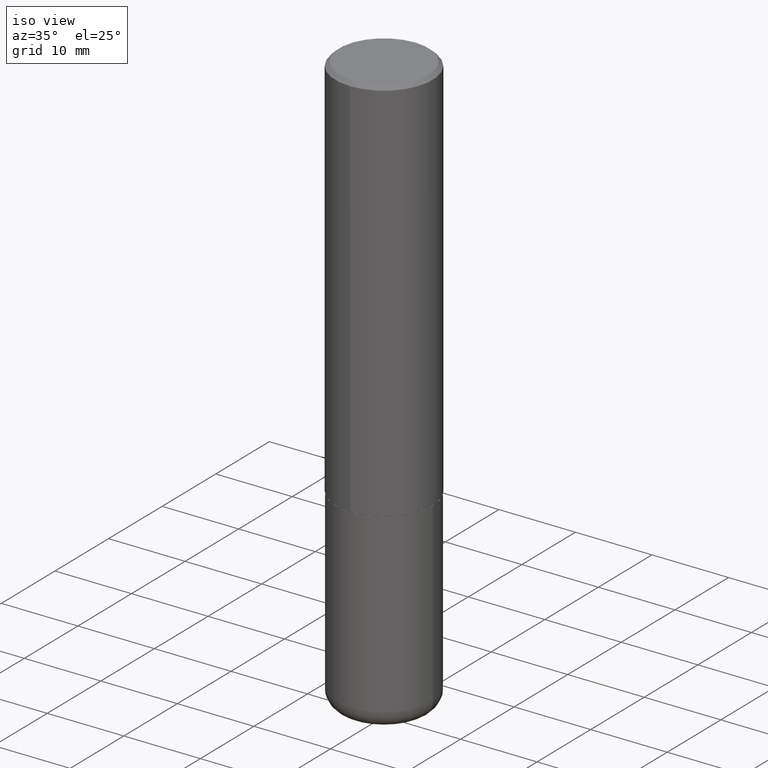
[diagram: clean part render]
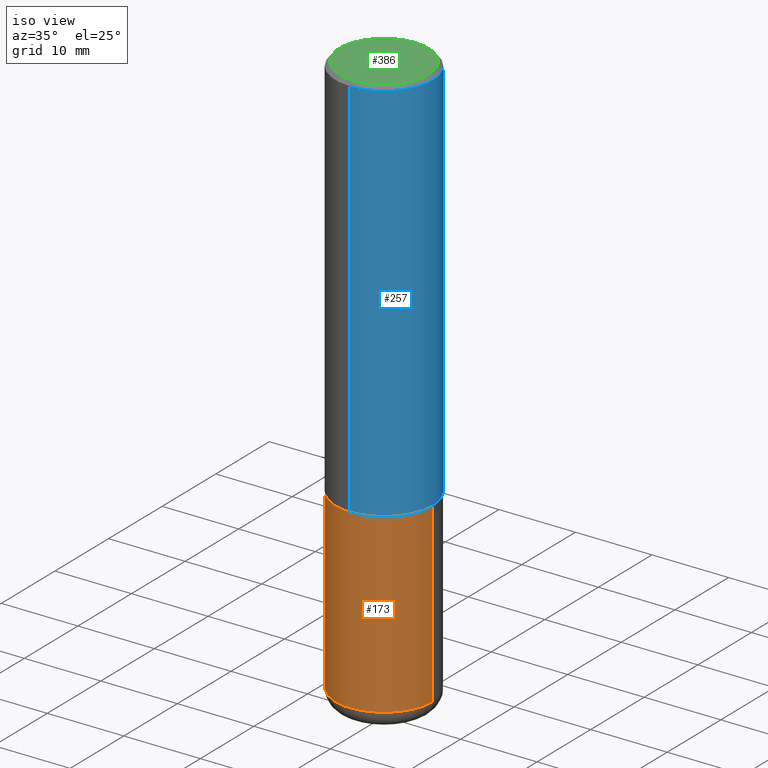
[diagram: same view with three faces highlighted in distinct colors, each labeled with its STEP entity id]
A machine part, iso view with three faces highlighted in distinct colors.
Their STEP definitions:

[orange] entity #173 — the highlighted cylindrical surface (partial cylindrical patch) has radius 6.35 mm, axis along (-0, 0, 1).
#1 = AXIS2_PLACEMENT_3D ( 'NONE', #129, #260, #95 ) ;
#2 = CARTESIAN_POINT ( 'NONE',  ( 0.000000000000000000, 0.000000000000000000, 0.000000000000000000 ) ) ;
#5 = VERTEX_POINT ( 'NONE', #296 ) ;
#36 = LINE ( 'NONE', #302, #264 ) ;
#43 = VECTOR ( 'NONE', #328, 39.37007874015748143 ) ;
#58 = VERTEX_POINT ( 'NONE', #156 ) ;
#61 = ORIENTED_EDGE ( 'NONE', *, *, #211, .T. ) ;
#73 = ORIENTED_EDGE ( 'NONE', *, *, #243, .T. ) ;
#95 = DIRECTION ( 'NONE',  ( 1.000000000000000000, -6.982962677686266711E-15, 0.000000000000000000 ) ) ;
#97 = EDGE_CURVE ( 'NONE', #58, #311, #136, .T. ) ;
#108 = CIRCLE ( 'NONE', #348, 0.2500000000000000555 ) ;
#115 = ORIENTED_EDGE ( 'NONE', *, *, #359, .F. ) ;
#129 = CARTESIAN_POINT ( 'NONE',  ( 4.890937612370273754E-29, -6.982962677686291954E-15, -2.000000000000000444 ) ) ;
#136 = CIRCLE ( 'NONE', #1, 0.2500000000000000000 ) ;
#154 = DIRECTION ( 'NONE',  ( 1.000000000000000000, -6.982962677686266711E-15, 4.876176775795935793E-29 ) ) ;
#156 = CARTESIAN_POINT ( 'NONE',  ( -0.2500000000000000000, -6.795229847459672846E-15, -2.000000000000000444 ) ) ;
#168 = CARTESIAN_POINT ( 'NONE',  ( -0.2500000000000000000, -8.383853856633304202E-15, -2.910000000000000586 ) ) ;
#173 = ADVANCED_FACE ( 'NONE', ( #379 ), #295, .T. ) ;
#185 = DIRECTION ( 'NONE',  ( -2.445468806185136597E-29, 3.491481338843145583E-15, 1.000000000000000000 ) ) ;
#191 = LINE ( 'NONE', #346, #43 ) ;
#211 = EDGE_CURVE ( 'NONE', #306, #5, #108, .T. ) ;
#213 = AXIS2_PLACEMENT_3D ( 'NONE', #2, #355, #154 ) ;
#243 = EDGE_CURVE ( 'NONE', #5, #311, #191, .T. ) ;
#249 = ORIENTED_EDGE ( 'NONE', *, *, #97, .F. ) ;
#251 = EDGE_LOOP ( 'NONE', ( #115, #61, #73, #249 ) ) ;
#260 = DIRECTION ( 'NONE',  ( -2.445468806185136597E-29, 3.491481338843145583E-15, 1.000000000000000000 ) ) ;
#264 = VECTOR ( 'NONE', #270, 39.37007874015748143 ) ;
#270 = DIRECTION ( 'NONE',  ( -2.445468806185136877E-29, 3.491481338843145188E-15, 1.000000000000000000 ) ) ;
#295 = CYLINDRICAL_SURFACE ( 'NONE', #213, 0.2500000000000000000 ) ;
#296 = CARTESIAN_POINT ( 'NONE',  ( 0.2500000000000000000, -1.190595136545512292E-14, -2.910000000000000586 ) ) ;
#302 = CARTESIAN_POINT ( 'NONE',  ( -0.2500000000000000000, 1.776356839400250465E-15, -1.229733772563726445E-29 ) ) ;
#306 = VERTEX_POINT ( 'NONE', #168 ) ;
#311 = VERTEX_POINT ( 'NONE', #330 ) ;
#321 = DIRECTION ( 'NONE',  ( 1.000000000000000000, -6.982962677686269077E-15, 0.000000000000000000 ) ) ;
#328 = DIRECTION ( 'NONE',  ( -2.445468806185136877E-29, 3.491481338843145188E-15, 1.000000000000000000 ) ) ;
#330 = CARTESIAN_POINT ( 'NONE',  ( 0.2500000000000000000, -8.728703347107858632E-15, -2.000000000000000444 ) ) ;
#346 = CARTESIAN_POINT ( 'NONE',  ( 0.2500000000000000000, -1.745740669421566678E-15, 1.219044193948983948E-29 ) ) ;
#348 = AXIS2_PLACEMENT_3D ( 'NONE', #417, #185, #321 ) ;
#355 = DIRECTION ( 'NONE',  ( -2.445468806185136597E-29, 3.491481338843145583E-15, 1.000000000000000000 ) ) ;
#359 = EDGE_CURVE ( 'NONE', #306, #58, #36, .T. ) ;
#379 = FACE_OUTER_BOUND ( 'NONE', #251, .T. ) ;
#417 = CARTESIAN_POINT ( 'NONE',  ( 7.116314225998749245E-29, -1.016021069603355467E-14, -2.910000000000000586 ) ) ;

[blue] entity #257 — the highlighted cylindrical surface (partial cylindrical patch) has radius 6.35 mm, axis along (-0, 0, 1).
#13 = DIRECTION ( 'NONE',  ( -2.444412496635560889E-29, 3.492994034239543658E-15, 1.000000000000000000 ) ) ;
#24 = FACE_OUTER_BOUND ( 'NONE', #165, .T. ) ;
#27 = CARTESIAN_POINT ( 'NONE',  ( 0.000000000000000000, 0.000000000000000000, 0.000000000000000000 ) ) ;
#29 = VECTOR ( 'NONE', #163, 39.37007874015748143 ) ;
#51 = EDGE_CURVE ( 'NONE', #352, #192, #198, .T. ) ;
#53 = CIRCLE ( 'NONE', #293, 0.2500000000000002776 ) ;
#62 = CIRCLE ( 'NONE', #172, 0.2500000000000000000 ) ;
#70 = DIRECTION ( 'NONE',  ( -6.982962677686265922E-15, -1.000000000000000000, 3.500180241882337261E-15 ) ) ;
#90 = EDGE_CURVE ( 'NONE', #352, #362, #53, .T. ) ;
#92 = DIRECTION ( 'NONE',  ( -6.982962677686266711E-15, -1.000000000000000000, 3.492994034239544053E-15 ) ) ;
#98 = CARTESIAN_POINT ( 'NONE',  ( -1.745740669421519543E-15, -0.2500000000000072164, -1.998999999999999444 ) ) ;
#117 = EDGE_CURVE ( 'NONE', #362, #409, #298, .T. ) ;
#146 = CYLINDRICAL_SURFACE ( 'NONE', #159, 0.2500000000000001110 ) ;
#159 = AXIS2_PLACEMENT_3D ( 'NONE', #27, #384, #92 ) ;
#163 = DIRECTION ( 'NONE',  ( -2.444412496635561170E-29, 3.492994034239543658E-15, 1.000000000000000000 ) ) ;
#165 = EDGE_LOOP ( 'NONE', ( #290, #255, #214, #372 ) ) ;
#172 = AXIS2_PLACEMENT_3D ( 'NONE', #233, #13, #70 ) ;
#192 = VERTEX_POINT ( 'NONE', #357 ) ;
#198 = LINE ( 'NONE', #305, #326 ) ;
#199 = CARTESIAN_POINT ( 'NONE',  ( 1.776356839400251254E-15, 0.2500000000000001110, -8.732485085598864076E-16 ) ) ;
#214 = ORIENTED_EDGE ( 'NONE', *, *, #316, .F. ) ;
#229 = DIRECTION ( 'NONE',  ( -2.444412496635561170E-29, 3.492994034239543658E-15, 1.000000000000000000 ) ) ;
#233 = CARTESIAN_POINT ( 'NONE',  ( 4.888824993271135161E-31, -6.985988068479105855E-17, -0.02000000000000005593 ) ) ;
#234 = CARTESIAN_POINT ( 'NONE',  ( 4.886380580774486722E-29, -6.982495074444848074E-15, -1.999000000000000110 ) ) ;
#255 = ORIENTED_EDGE ( 'NONE', *, *, #117, .T. ) ;
#257 = ADVANCED_FACE ( 'NONE', ( #24 ), #146, .T. ) ;
#266 = CARTESIAN_POINT ( 'NONE',  ( 1.776356839400276103E-15, 0.2499999999999933109, -1.999000000000000998 ) ) ;
#290 = ORIENTED_EDGE ( 'NONE', *, *, #90, .T. ) ;
#293 = AXIS2_PLACEMENT_3D ( 'NONE', #234, #363, #395 ) ;
#298 = LINE ( 'NONE', #199, #29 ) ;
#305 = CARTESIAN_POINT ( 'NONE',  ( -1.745740669421567467E-15, -0.2500000000000001110, 8.732485085598864076E-16 ) ) ;
#308 = CARTESIAN_POINT ( 'NONE',  ( 1.745740669421566875E-15, 0.2499999999999999167, -0.02000000000000093023 ) ) ;
#316 = EDGE_CURVE ( 'NONE', #192, #409, #62, .T. ) ;
#326 = VECTOR ( 'NONE', #229, 39.37007874015748143 ) ;
#352 = VERTEX_POINT ( 'NONE', #98 ) ;
#357 = CARTESIAN_POINT ( 'NONE',  ( -1.715124499442882299E-15, -0.2500000000000000555, -0.01999999999999918163 ) ) ;
#362 = VERTEX_POINT ( 'NONE', #266 ) ;
#363 = DIRECTION ( 'NONE',  ( -2.444412496635560889E-29, 3.492994034239543658E-15, 1.000000000000000000 ) ) ;
#372 = ORIENTED_EDGE ( 'NONE', *, *, #51, .F. ) ;
#384 = DIRECTION ( 'NONE',  ( -2.444412496635560889E-29, 3.492994034239543658E-15, 1.000000000000000000 ) ) ;
#395 = DIRECTION ( 'NONE',  ( -6.982962677686265922E-15, -1.000000000000000000, 3.278217592397112312E-15 ) ) ;
#409 = VERTEX_POINT ( 'NONE', #308 ) ;

[green] entity #386 — the highlighted planar face has unit normal (0, -0, -1).
#4 = CARTESIAN_POINT ( 'NONE',  ( -6.999288131327388275E-45, 1.000177822699752408E-30, 2.863382567778991632E-16 ) ) ;
#11 = CARTESIAN_POINT ( 'NONE',  ( 1.606081415867839095E-15, 0.2299999999999997047, -6.602194994861444855E-16 ) ) ;
#54 = CIRCLE ( 'NONE', #368, 0.2299999999999997047 ) ;
#80 = CIRCLE ( 'NONE', #263, 0.2299999999999997047 ) ;
#105 = DIRECTION ( 'NONE',  ( 2.444412496635560609E-29, -3.492994034239543658E-15, -1.000000000000000000 ) ) ;
#109 = AXIS2_PLACEMENT_3D ( 'NONE', #11, #105, #398 ) ;
#116 = DIRECTION ( 'NONE',  ( -2.444412496635560889E-29, 3.492994034239543658E-15, 1.000000000000000000 ) ) ;
#121 = DIRECTION ( 'NONE',  ( -6.982962677686265922E-15, -1.000000000000000000, 3.492994034239542869E-15 ) ) ;
#130 = DIRECTION ( 'NONE',  ( -2.444412496635560889E-29, 3.492994034239543658E-15, 1.000000000000000000 ) ) ;
#162 = CARTESIAN_POINT ( 'NONE',  ( -6.999288131327388275E-45, 1.000177822699752408E-30, 2.863382567778991632E-16 ) ) ;
#183 = EDGE_CURVE ( 'NONE', #223, #221, #80, .T. ) ;
#216 = CARTESIAN_POINT ( 'NONE',  ( -1.646519519465165981E-15, -0.2299999999999997047, 1.089726884652993329E-15 ) ) ;
#221 = VERTEX_POINT ( 'NONE', #252 ) ;
#223 = VERTEX_POINT ( 'NONE', #216 ) ;
#252 = CARTESIAN_POINT ( 'NONE',  ( 1.675911042644702985E-15, 0.2299999999999997047, -5.170503710971948053E-16 ) ) ;
#263 = AXIS2_PLACEMENT_3D ( 'NONE', #4, #116, #121 ) ;
#267 = DIRECTION ( 'NONE',  ( -6.982962677686265922E-15, -1.000000000000000000, 3.492994034239542869E-15 ) ) ;
#273 = FACE_OUTER_BOUND ( 'NONE', #400, .T. ) ;
#280 = ORIENTED_EDGE ( 'NONE', *, *, #183, .T. ) ;
#368 = AXIS2_PLACEMENT_3D ( 'NONE', #162, #130, #267 ) ;
#386 = ADVANCED_FACE ( 'NONE', ( #273 ), #401, .F. ) ;
#398 = DIRECTION ( 'NONE',  ( 6.982962677686265922E-15, 1.000000000000000000, -3.492994034239543658E-15 ) ) ;
#400 = EDGE_LOOP ( 'NONE', ( #418, #280 ) ) ;
#401 = PLANE ( 'NONE',  #109 ) ;
#414 = EDGE_CURVE ( 'NONE', #221, #223, #54, .T. ) ;
#418 = ORIENTED_EDGE ( 'NONE', *, *, #414, .T. ) ;